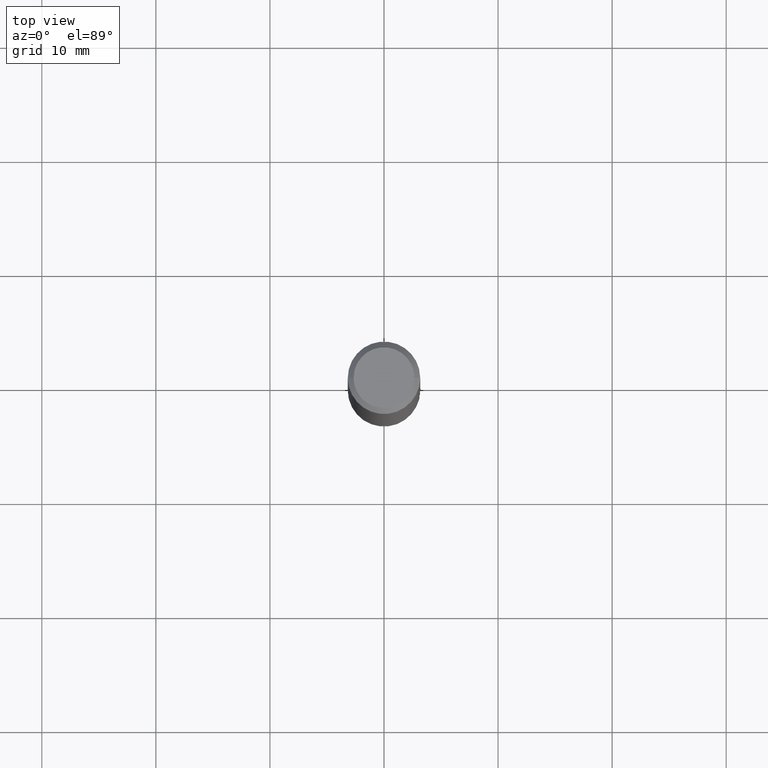
[diagram: clean part render]
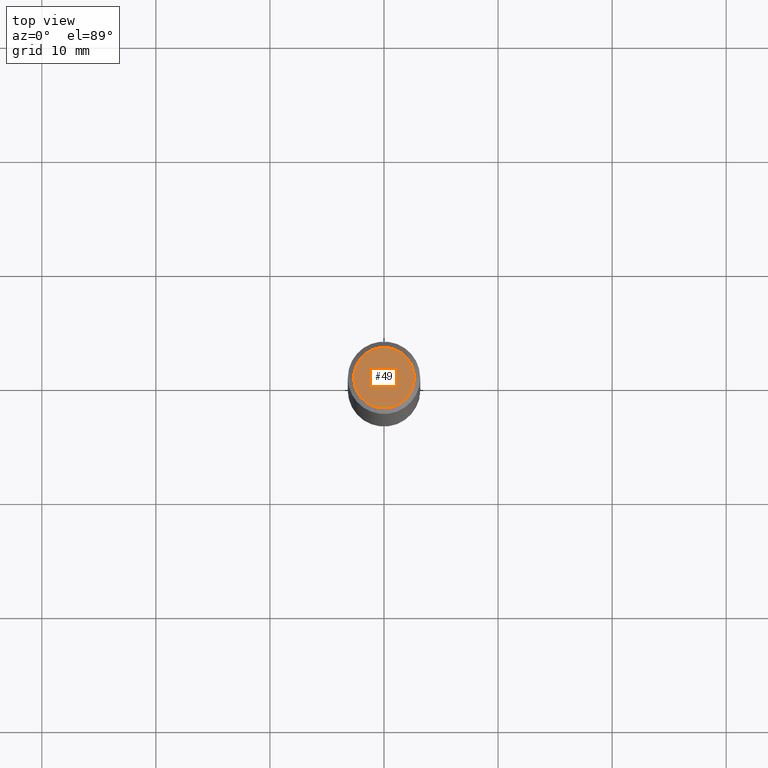
[diagram: same view with one face highlighted and labeled with its STEP entity id]
A machine part, top view. The second image highlights one B-rep face of the part: STEP entity #49.
In plain terms, the highlighted planar face has unit normal (0, -0, -1).
Its self-contained STEP definition (entity closure, byte-faithful):
#10 = FACE_OUTER_BOUND ( 'NONE', #170, .T. ) ;
#13 = DIRECTION ( 'NONE',  ( 2.438088387897960049E-29, -3.491481338843145188E-15, -1.000000000000000000 ) ) ;
#24 = VERTEX_POINT ( 'NONE', #145 ) ;
#49 = ADVANCED_FACE ( 'NONE', ( #10 ), #142, .F. ) ;
#69 = AXIS2_PLACEMENT_3D ( 'NONE', #366, #293, #290 ) ;
#94 = CARTESIAN_POINT ( 'NONE',  ( 7.332110811570564466E-16, 0.1049999999999997879, -3.666055405785295545E-16 ) ) ;
#97 = AXIS2_PLACEMENT_3D ( 'NONE', #255, #157, #276 ) ;
#115 = VERTEX_POINT ( 'NONE', #284 ) ;
#142 = PLANE ( 'NONE',  #326 ) ;
#145 = CARTESIAN_POINT ( 'NONE',  ( -0.1049999999999997879, 7.681258945454876027E-16, -5.249639473182156767E-30 ) ) ;
#152 = EDGE_CURVE ( 'NONE', #24, #115, #262, .T. ) ;
#157 = DIRECTION ( 'NONE',  ( -2.445468806185136597E-29, 3.491481338843145583E-15, 1.000000000000000000 ) ) ;
#170 = EDGE_LOOP ( 'NONE', ( #316, #259 ) ) ;
#205 = DIRECTION ( 'NONE',  ( -1.000000000000000000, 6.982962677686265922E-15, -4.876176775795935793E-29 ) ) ;
#249 = EDGE_CURVE ( 'NONE', #115, #24, #355, .T. ) ;
#255 = CARTESIAN_POINT ( 'NONE',  ( 0.000000000000000000, 0.000000000000000000, 0.000000000000000000 ) ) ;
#259 = ORIENTED_EDGE ( 'NONE', *, *, #249, .T. ) ;
#262 = CIRCLE ( 'NONE', #97, 0.1049999999999997879 ) ;
#276 = DIRECTION ( 'NONE',  ( 1.000000000000000000, -6.982962677686265922E-15, 4.876176775795935232E-29 ) ) ;
#284 = CARTESIAN_POINT ( 'NONE',  ( 0.1049999999999997879, -8.238720831321562839E-16, 5.444276250344140956E-30 ) ) ;
#290 = DIRECTION ( 'NONE',  ( 1.000000000000000000, -6.982962677686265922E-15, 4.876176775795935232E-29 ) ) ;
#293 = DIRECTION ( 'NONE',  ( -2.445468806185136597E-29, 3.491481338843145583E-15, 1.000000000000000000 ) ) ;
#316 = ORIENTED_EDGE ( 'NONE', *, *, #152, .T. ) ;
#326 = AXIS2_PLACEMENT_3D ( 'NONE', #94, #13, #205 ) ;
#355 = CIRCLE ( 'NONE', #69, 0.1049999999999997879 ) ;
#366 = CARTESIAN_POINT ( 'NONE',  ( 0.000000000000000000, 0.000000000000000000, 0.000000000000000000 ) ) ;